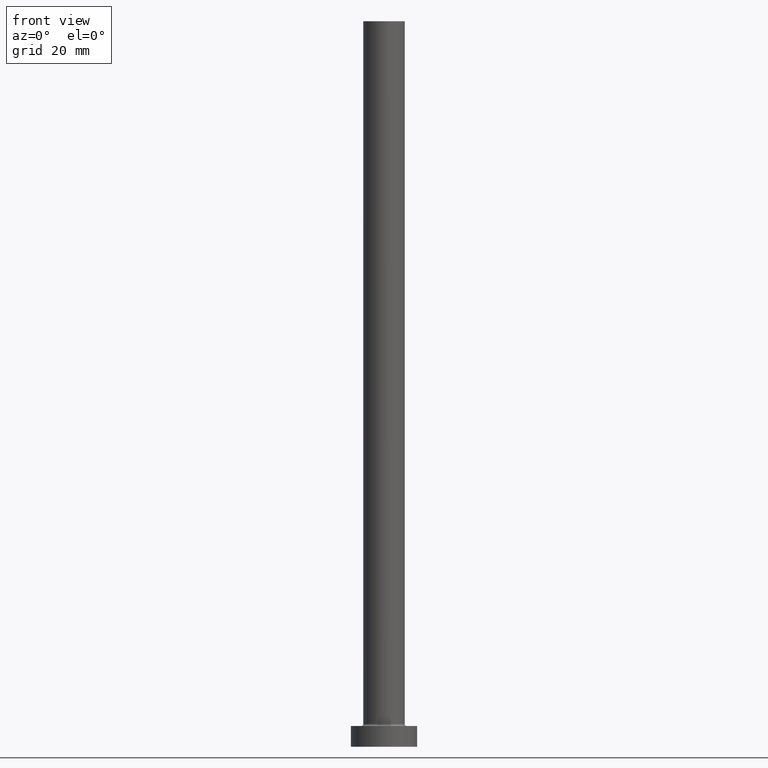
[diagram: clean part render]
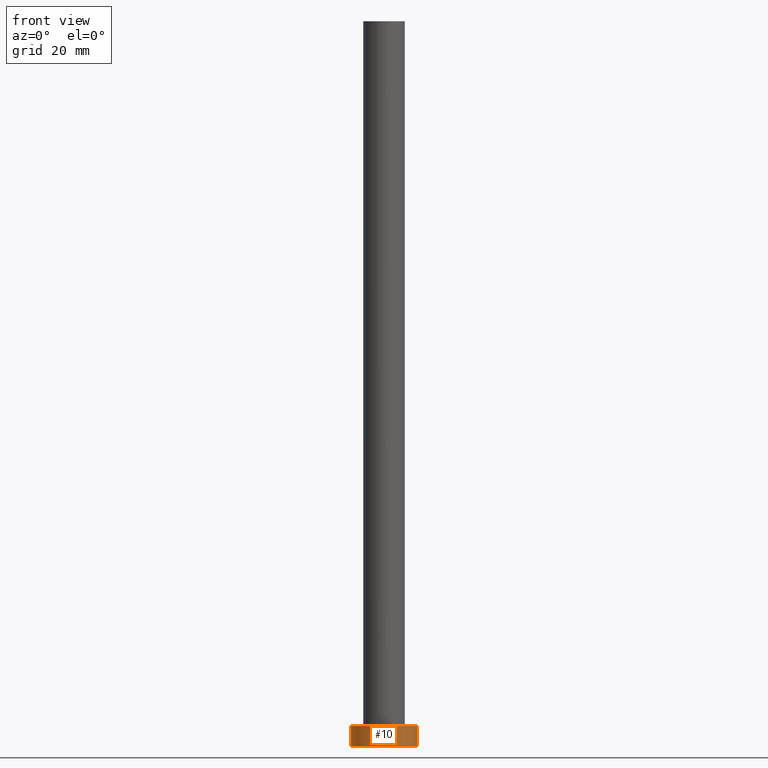
[diagram: same view with one face highlighted and labeled with its STEP entity id]
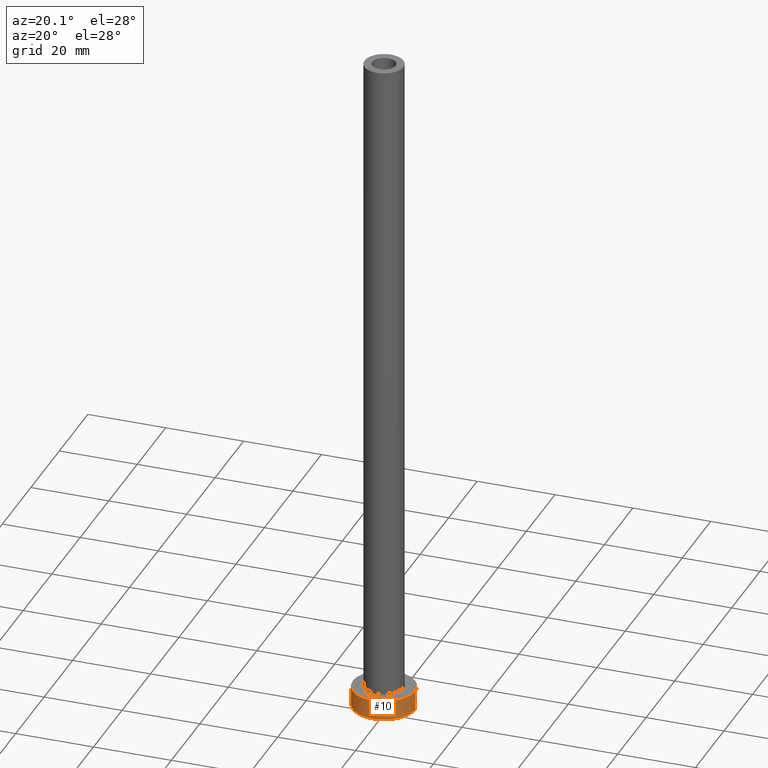
[diagram: same view with one face highlighted and labeled with its STEP entity id]
A machine part, front view. The second image highlights one B-rep face of the part: STEP entity #10.
A second angle (auxiliary view) of the same face is appended — the face is thin or edge-on in the first view.
In plain terms, the highlighted cylindrical surface (edge-blend (fillet) strip) has radius 8 mm, axis along (-0, -0, -1).
Its self-contained STEP definition (entity closure, byte-faithful):
#8 = ORIENTED_EDGE ( 'NONE', *, *, #93, .T. ) ;
#10 = ADVANCED_FACE ( 'NONE', ( #237 ), #153, .T. ) ;
#24 = DIRECTION ( 'NONE',  ( -0.000000000000000000, -0.000000000000000000, -1.000000000000000000 ) ) ;
#49 = EDGE_CURVE ( 'NONE', #308, #437, #344, .T. ) ;
#61 = ORIENTED_EDGE ( 'NONE', *, *, #419, .F. ) ;
#84 = CARTESIAN_POINT ( 'NONE',  ( 0.000000000000000000, 0.000000000000000000, 5.000000000000000000 ) ) ;
#93 = EDGE_CURVE ( 'NONE', #230, #206, #257, .T. ) ;
#100 = CARTESIAN_POINT ( 'NONE',  ( 8.000000000000000000, 9.797174393178825657E-16, 5.000000000000000000 ) ) ;
#120 = CIRCLE ( 'NONE', #350, 8.000000000000000000 ) ;
#129 = CARTESIAN_POINT ( 'NONE',  ( 8.000000000000000000, 9.797174393178825657E-16, 5.000000000000000000 ) ) ;
#150 = CARTESIAN_POINT ( 'NONE',  ( -8.000000000000000000, 0.000000000000000000, 0.000000000000000000 ) ) ;
#151 = ORIENTED_EDGE ( 'NONE', *, *, #364, .T. ) ;
#153 = CYLINDRICAL_SURFACE ( 'NONE', #324, 8.000000000000000000 ) ;
#159 = DIRECTION ( 'NONE',  ( 1.000000000000000000, 0.000000000000000000, 0.000000000000000000 ) ) ;
#172 = CARTESIAN_POINT ( 'NONE',  ( 8.000000000000000000, 9.797174393178825657E-16, 0.000000000000000000 ) ) ;
#189 = EDGE_LOOP ( 'NONE', ( #295, #61, #8, #151 ) ) ;
#206 = VERTEX_POINT ( 'NONE', #150 ) ;
#213 = AXIS2_PLACEMENT_3D ( 'NONE', #240, #342, #303 ) ;
#221 = CARTESIAN_POINT ( 'NONE',  ( -8.000000000000000000, 0.000000000000000000, 5.000000000000000000 ) ) ;
#230 = VERTEX_POINT ( 'NONE', #221 ) ;
#237 = FACE_OUTER_BOUND ( 'NONE', #189, .T. ) ;
#240 = CARTESIAN_POINT ( 'NONE',  ( 0.000000000000000000, 0.000000000000000000, 0.000000000000000000 ) ) ;
#257 = LINE ( 'NONE', #386, #425 ) ;
#274 = DIRECTION ( 'NONE',  ( 0.000000000000000000, 0.000000000000000000, 1.000000000000000000 ) ) ;
#277 = DIRECTION ( 'NONE',  ( -0.000000000000000000, -0.000000000000000000, -1.000000000000000000 ) ) ;
#295 = ORIENTED_EDGE ( 'NONE', *, *, #49, .F. ) ;
#302 = DIRECTION ( 'NONE',  ( -1.000000000000000000, 0.000000000000000000, 0.000000000000000000 ) ) ;
#303 = DIRECTION ( 'NONE',  ( 1.000000000000000000, 0.000000000000000000, 0.000000000000000000 ) ) ;
#304 = VECTOR ( 'NONE', #277, 1000.000000000000000 ) ;
#308 = VERTEX_POINT ( 'NONE', #100 ) ;
#310 = DIRECTION ( 'NONE',  ( -0.000000000000000000, -0.000000000000000000, -1.000000000000000000 ) ) ;
#324 = AXIS2_PLACEMENT_3D ( 'NONE', #84, #310, #302 ) ;
#342 = DIRECTION ( 'NONE',  ( 0.000000000000000000, 0.000000000000000000, 1.000000000000000000 ) ) ;
#344 = LINE ( 'NONE', #129, #304 ) ;
#350 = AXIS2_PLACEMENT_3D ( 'NONE', #438, #274, #159 ) ;
#364 = EDGE_CURVE ( 'NONE', #206, #437, #447, .T. ) ;
#386 = CARTESIAN_POINT ( 'NONE',  ( -8.000000000000000000, 0.000000000000000000, 5.000000000000000000 ) ) ;
#419 = EDGE_CURVE ( 'NONE', #230, #308, #120, .T. ) ;
#425 = VECTOR ( 'NONE', #24, 1000.000000000000000 ) ;
#437 = VERTEX_POINT ( 'NONE', #172 ) ;
#438 = CARTESIAN_POINT ( 'NONE',  ( 0.000000000000000000, 0.000000000000000000, 5.000000000000000000 ) ) ;
#447 = CIRCLE ( 'NONE', #213, 8.000000000000000000 ) ;